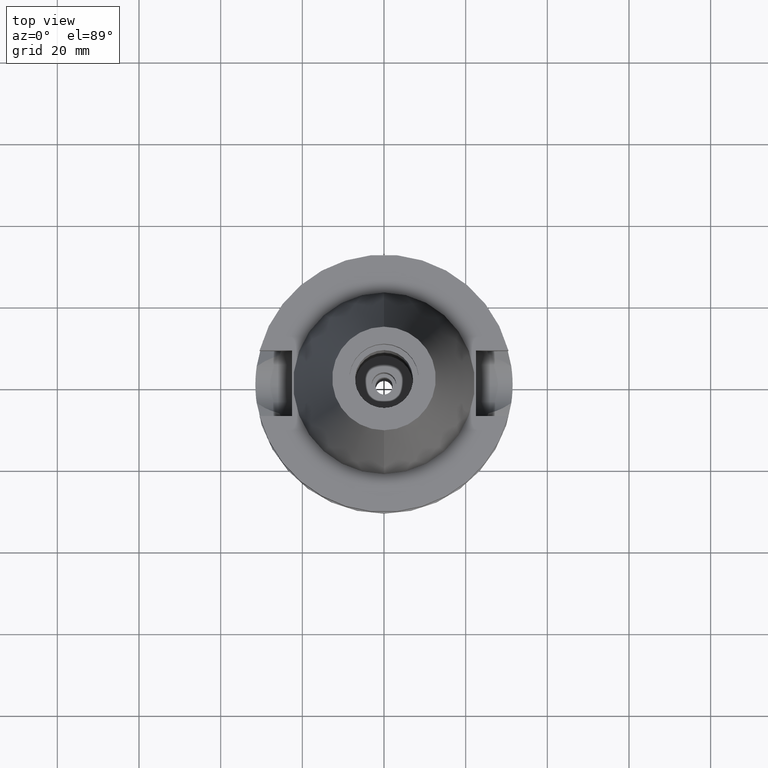
[diagram: clean part render]
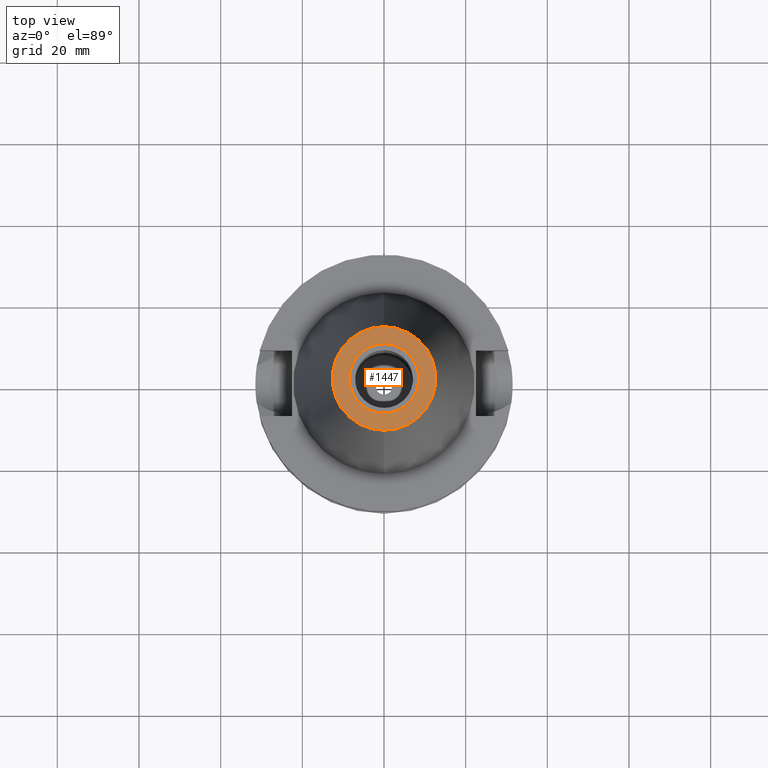
[diagram: same view with one face highlighted and labeled with its STEP entity id]
A machine part, top view. The second image highlights one B-rep face of the part: STEP entity #1447.
In plain terms, the highlighted planar face has unit normal (0, 0, -1).
Its self-contained STEP definition (entity closure, byte-faithful):
#94 = AXIS2_PLACEMENT_3D ( 'NONE', #1642, #2572, #2815 ) ;
#117 = CIRCLE ( 'NONE', #1796, 12.68766899429999917 ) ;
#234 = CARTESIAN_POINT ( 'NONE',  ( 0.0000000000000000000, -12.68766899429999917, 65.40000000000000568 ) ) ;
#287 = DIRECTION ( 'NONE',  ( 0.0000000000000000000, 0.0000000000000000000, 1.000000000000000000 ) ) ;
#307 = CARTESIAN_POINT ( 'NONE',  ( 0.0000000000000000000, -8.500000000000000000, 65.40000000000000568 ) ) ;
#399 = ORIENTED_EDGE ( 'NONE', *, *, #544, .F. ) ;
#456 = EDGE_CURVE ( 'NONE', #2229, #946, #1937, .T. ) ;
#473 = FACE_OUTER_BOUND ( 'NONE', #2563, .T. ) ;
#478 = VERTEX_POINT ( 'NONE', #578 ) ;
#489 = PLANE ( 'NONE',  #1083 ) ;
#544 = EDGE_CURVE ( 'NONE', #595, #478, #117, .T. ) ;
#578 = CARTESIAN_POINT ( 'NONE',  ( 0.0000000000000000000, 12.68766899429999917, 65.40000000000000568 ) ) ;
#595 = VERTEX_POINT ( 'NONE', #234 ) ;
#703 = AXIS2_PLACEMENT_3D ( 'NONE', #2321, #2632, #1310 ) ;
#828 = DIRECTION ( 'NONE',  ( 0.0000000000000000000, 0.0000000000000000000, -1.000000000000000000 ) ) ;
#946 = VERTEX_POINT ( 'NONE', #307 ) ;
#1083 = AXIS2_PLACEMENT_3D ( 'NONE', #1420, #1404, #2329 ) ;
#1118 = ORIENTED_EDGE ( 'NONE', *, *, #2967, .F. ) ;
#1310 = DIRECTION ( 'NONE',  ( 0.0000000000000000000, 1.000000000000000000, 0.0000000000000000000 ) ) ;
#1382 = EDGE_CURVE ( 'NONE', #946, #2229, #1750, .T. ) ;
#1404 = DIRECTION ( 'NONE',  ( 0.0000000000000000000, 0.0000000000000000000, -1.000000000000000000 ) ) ;
#1420 = CARTESIAN_POINT ( 'NONE',  ( 0.0000000000000000000, 2.025565805790000122E-14, 65.40000000000000568 ) ) ;
#1447 = ADVANCED_FACE ( 'NONE', ( #473, #1872 ), #489, .F. ) ;
#1641 = CARTESIAN_POINT ( 'NONE',  ( 0.0000000000000000000, 2.118271568485000005E-14, 65.40000000000000568 ) ) ;
#1642 = CARTESIAN_POINT ( 'NONE',  ( 0.0000000000000000000, 1.625106302469000024E-14, 65.40000000000000568 ) ) ;
#1658 = DIRECTION ( 'NONE',  ( 0.0000000000000000000, -1.000000000000000000, 0.0000000000000000000 ) ) ;
#1750 = CIRCLE ( 'NONE', #1897, 8.500000000000000000 ) ;
#1796 = AXIS2_PLACEMENT_3D ( 'NONE', #2682, #828, #2440 ) ;
#1851 = ORIENTED_EDGE ( 'NONE', *, *, #1382, .F. ) ;
#1862 = CARTESIAN_POINT ( 'NONE',  ( 0.0000000000000000000, 8.500000000000000000, 65.40000000000000568 ) ) ;
#1872 = FACE_BOUND ( 'NONE', #2077, .T. ) ;
#1897 = AXIS2_PLACEMENT_3D ( 'NONE', #1641, #287, #1658 ) ;
#1937 = CIRCLE ( 'NONE', #703, 8.500000000000000000 ) ;
#2077 = EDGE_LOOP ( 'NONE', ( #2451, #1851 ) ) ;
#2229 = VERTEX_POINT ( 'NONE', #1862 ) ;
#2307 = CIRCLE ( 'NONE', #94, 12.68766899429999917 ) ;
#2321 = CARTESIAN_POINT ( 'NONE',  ( 0.0000000000000000000, 2.118271568485000005E-14, 65.40000000000000568 ) ) ;
#2329 = DIRECTION ( 'NONE',  ( 0.0000000000000000000, -1.000000000000000000, 0.0000000000000000000 ) ) ;
#2440 = DIRECTION ( 'NONE',  ( 0.0000000000000000000, -1.000000000000000000, 0.0000000000000000000 ) ) ;
#2451 = ORIENTED_EDGE ( 'NONE', *, *, #456, .F. ) ;
#2563 = EDGE_LOOP ( 'NONE', ( #1118, #399 ) ) ;
#2572 = DIRECTION ( 'NONE',  ( 0.0000000000000000000, 0.0000000000000000000, -1.000000000000000000 ) ) ;
#2632 = DIRECTION ( 'NONE',  ( 0.0000000000000000000, 0.0000000000000000000, 1.000000000000000000 ) ) ;
#2682 = CARTESIAN_POINT ( 'NONE',  ( 0.0000000000000000000, 1.625106302469000024E-14, 65.40000000000000568 ) ) ;
#2815 = DIRECTION ( 'NONE',  ( 0.0000000000000000000, 1.000000000000000000, 0.0000000000000000000 ) ) ;
#2967 = EDGE_CURVE ( 'NONE', #478, #595, #2307, .T. ) ;